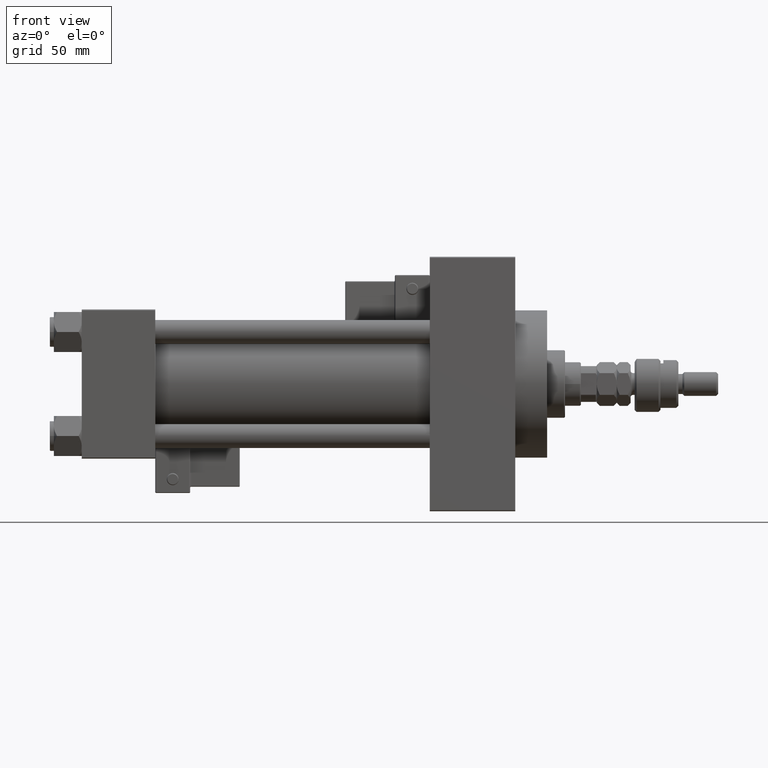
[diagram: clean part render]
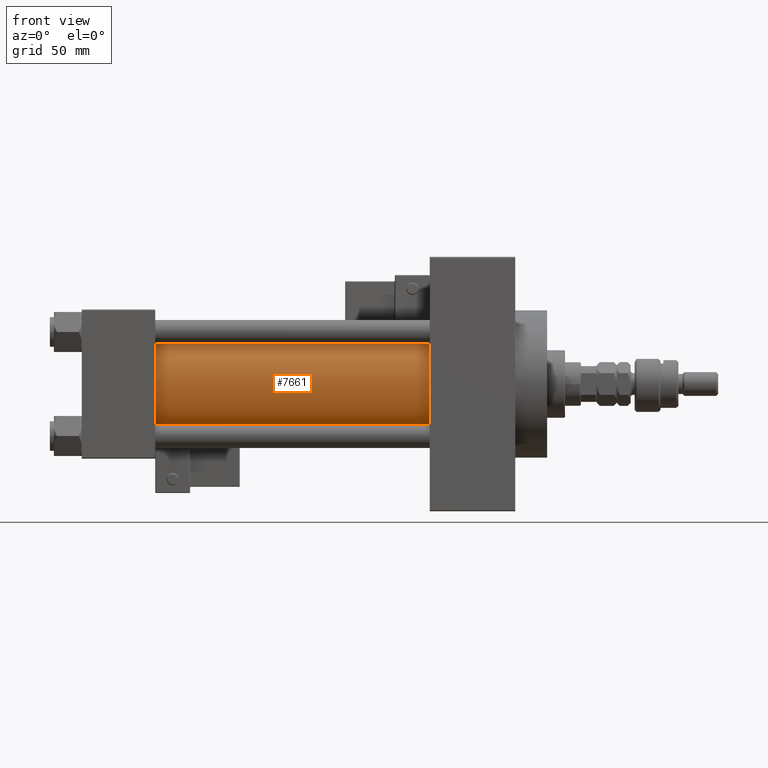
[diagram: same view with one face highlighted and labeled with its STEP entity id]
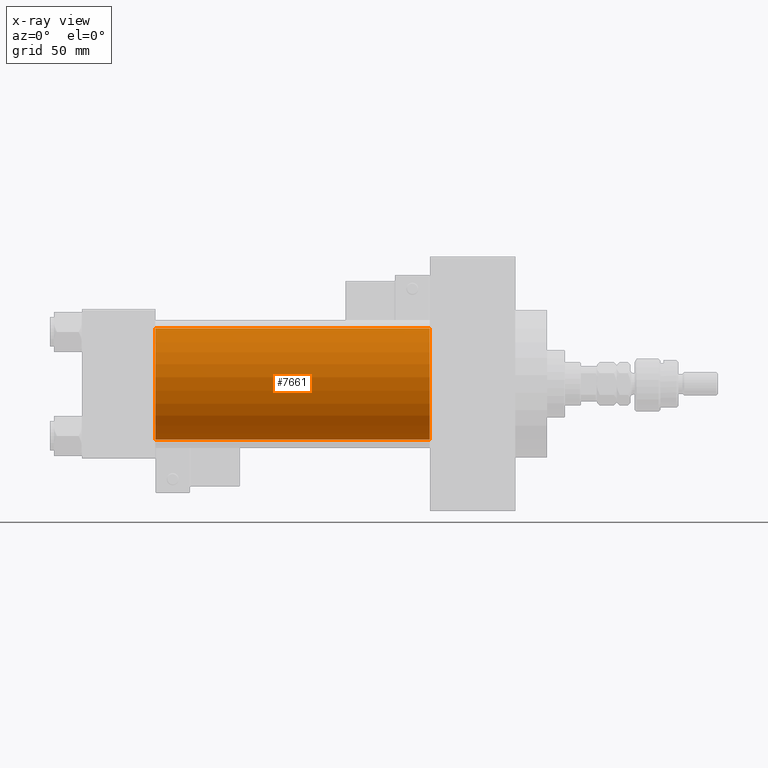
[diagram: x-ray of the same camera — body ghosted, the highlighted face saturated]
A machine part, front view. The second image highlights one B-rep face of the part: STEP entity #7661.
The next image is the same camera in x-ray: the body ghosted, the highlighted face saturated — about 0% of this face is hidden behind the body in this view.
In plain terms, the highlighted cylindrical surface (partial cylindrical patch) has radius 28 mm, axis along (-1, -0, -0).
Its self-contained STEP definition (entity closure, byte-faithful):
#1281 = VECTOR ( 'NONE', #22069, 1000.000000000000000 ) ;
#1767 = AXIS2_PLACEMENT_3D ( 'NONE', #9582, #30531, #46716 ) ;
#2404 = EDGE_CURVE ( 'NONE', #24063, #33501, #42115, .T. ) ;
#2900 = CARTESIAN_POINT ( 'NONE',  ( 175.0000000000000284, -2.602085213965210642E-15, 28.00000000000000000 ) ) ;
#3137 = ORIENTED_EDGE ( 'NONE', *, *, #10108, .T. ) ;
#6392 = CYLINDRICAL_SURFACE ( 'NONE', #1767, 28.00000000000000000 ) ;
#7661 = ADVANCED_FACE ( 'NONE', ( #42195 ), #6392, .T. ) ;
#9582 = CARTESIAN_POINT ( 'NONE',  ( 175.0000000000000284, -2.602085213965210642E-15, 0.000000000000000000 ) ) ;
#10108 = EDGE_CURVE ( 'NONE', #24063, #15397, #29443, .T. ) ;
#10297 = EDGE_LOOP ( 'NONE', ( #52306, #16599, #3137, #17648 ) ) ;
#14143 = CARTESIAN_POINT ( 'NONE',  ( 175.0000000000000284, -2.602085213965210642E-15, 0.000000000000000000 ) ) ;
#15397 = VERTEX_POINT ( 'NONE', #35224 ) ;
#16412 = CARTESIAN_POINT ( 'NONE',  ( 37.00000000000000711, -2.602085213965210642E-15, 0.000000000000000000 ) ) ;
#16599 = ORIENTED_EDGE ( 'NONE', *, *, #2404, .F. ) ;
#17597 = DIRECTION ( 'NONE',  ( 1.000000000000000000, 0.000000000000000000, 0.000000000000000000 ) ) ;
#17648 = ORIENTED_EDGE ( 'NONE', *, *, #24170, .T. ) ;
#21224 = CARTESIAN_POINT ( 'NONE',  ( 175.0000000000000284, -2.602085213965210642E-15, 28.00000000000000000 ) ) ;
#21416 = DIRECTION ( 'NONE',  ( 1.000000000000000000, -0.000000000000000000, 0.000000000000000000 ) ) ;
#21781 = AXIS2_PLACEMENT_3D ( 'NONE', #14143, #17597, #33560 ) ;
#22069 = DIRECTION ( 'NONE',  ( -1.000000000000000000, -0.000000000000000000, -0.000000000000000000 ) ) ;
#22500 = AXIS2_PLACEMENT_3D ( 'NONE', #16412, #21416, #37140 ) ;
#22602 = CARTESIAN_POINT ( 'NONE',  ( 175.0000000000000284, 8.269258236473784371E-16, -28.00000000000000000 ) ) ;
#24063 = VERTEX_POINT ( 'NONE', #2900 ) ;
#24170 = EDGE_CURVE ( 'NONE', #15397, #29160, #45421, .T. ) ;
#25455 = DIRECTION ( 'NONE',  ( -1.000000000000000000, -0.000000000000000000, -0.000000000000000000 ) ) ;
#26054 = LINE ( 'NONE', #22602, #1281 ) ;
#29160 = VERTEX_POINT ( 'NONE', #45408 ) ;
#29443 = LINE ( 'NONE', #21224, #31404 ) ;
#30531 = DIRECTION ( 'NONE',  ( -1.000000000000000000, -0.000000000000000000, -0.000000000000000000 ) ) ;
#31404 = VECTOR ( 'NONE', #25455, 1000.000000000000000 ) ;
#33501 = VERTEX_POINT ( 'NONE', #37582 ) ;
#33560 = DIRECTION ( 'NONE',  ( 0.000000000000000000, 0.000000000000000000, -1.000000000000000000 ) ) ;
#35224 = CARTESIAN_POINT ( 'NONE',  ( 37.00000000000000711, -2.602085213965210642E-15, 28.00000000000000000 ) ) ;
#37140 = DIRECTION ( 'NONE',  ( 0.000000000000000000, 0.000000000000000000, 1.000000000000000000 ) ) ;
#37582 = CARTESIAN_POINT ( 'NONE',  ( 175.0000000000000284, 8.269258236473784371E-16, -28.00000000000000000 ) ) ;
#42115 = CIRCLE ( 'NONE', #21781, 28.00000000000000000 ) ;
#42195 = FACE_OUTER_BOUND ( 'NONE', #10297, .T. ) ;
#45408 = CARTESIAN_POINT ( 'NONE',  ( 37.00000000000000711, 8.269258236473784371E-16, -28.00000000000000000 ) ) ;
#45421 = CIRCLE ( 'NONE', #22500, 28.00000000000000000 ) ;
#46716 = DIRECTION ( 'NONE',  ( 0.000000000000000000, 0.000000000000000000, 1.000000000000000000 ) ) ;
#50358 = EDGE_CURVE ( 'NONE', #33501, #29160, #26054, .T. ) ;
#52306 = ORIENTED_EDGE ( 'NONE', *, *, #50358, .F. ) ;